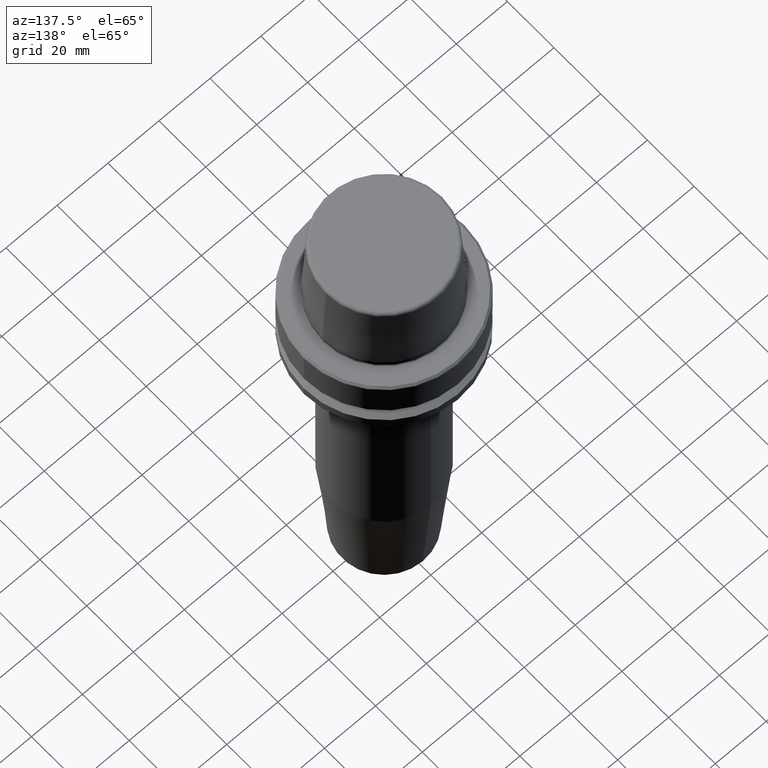
[diagram: clean part render]
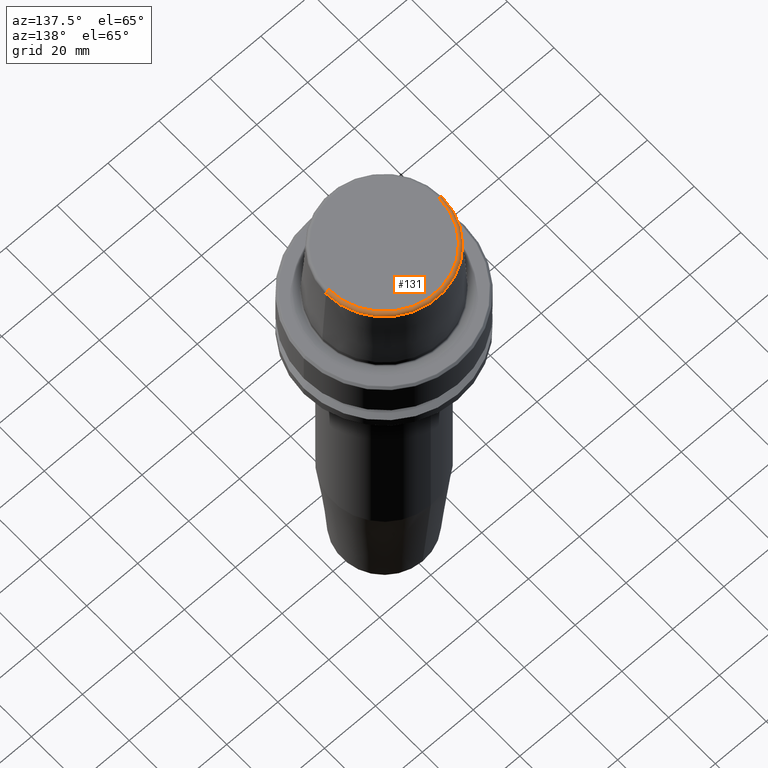
[diagram: same view with one face highlighted and labeled with its STEP entity id]
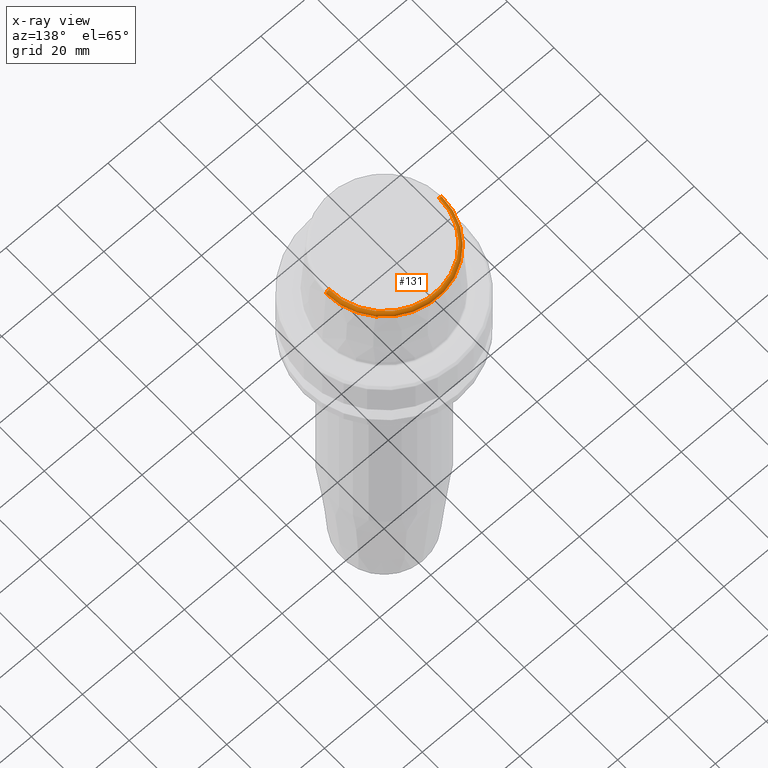
[diagram: x-ray of the same camera — body ghosted, the highlighted face saturated]
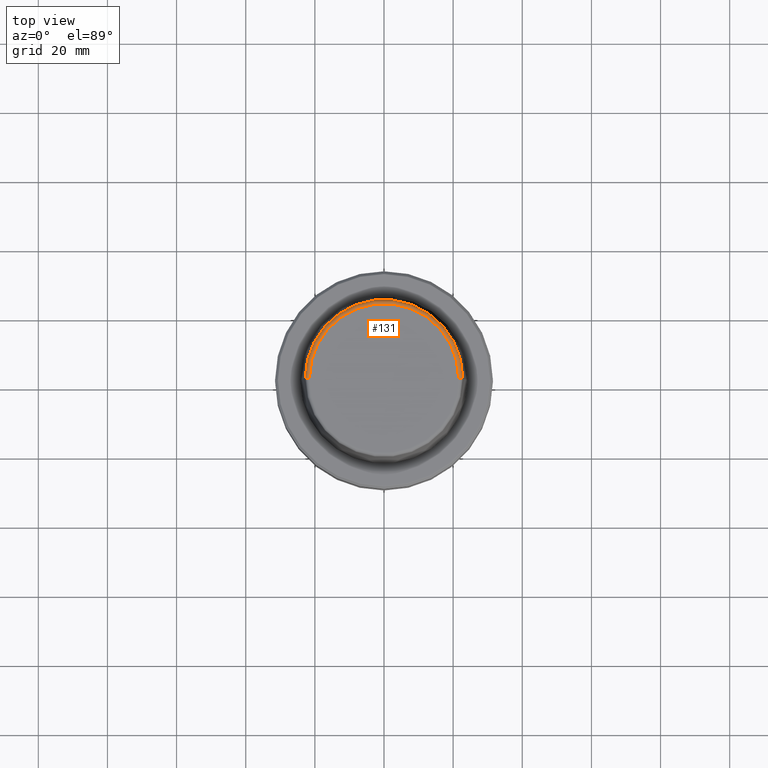
[diagram: same view with one face highlighted and labeled with its STEP entity id]
A machine part, auxiliary view. The second image highlights one B-rep face of the part: STEP entity #131.
The next image is the same camera in x-ray: the body ghosted, the highlighted face saturated — about 0% of this face is hidden behind the body in this view.
A second angle (top view) of the same face is appended — the face is thin or edge-on in the first view.
In plain terms, the highlighted toroidal blend (fillet) surface has major radius 21.5811 mm and minor (blend) radius 1.2 mm.
Its self-contained STEP definition (entity closure, byte-faithful):
#25 = CIRCLE ( 'NONE', #734, 1.200000000000003100 ) ;
#33 = DIRECTION ( 'NONE',  ( -0.0000000000000000000, -0.0000000000000000000, 1.000000000000000000 ) ) ;
#54 = CARTESIAN_POINT ( 'NONE',  ( -21.58108272732117100, 2.716307157494421400E-015, 31.89999999999999900 ) ) ;
#67 = CIRCLE ( 'NONE', #1144, 21.58108272732117100 ) ;
#114 = EDGE_CURVE ( 'NONE', #1018, #348, #257, .T. ) ;
#119 = CIRCLE ( 'NONE', #219, 1.200000000000003100 ) ;
#131 = ADVANCED_FACE ( 'NONE', ( #402 ), #1231, .T. ) ;
#201 = VERTEX_POINT ( 'NONE', #1183 ) ;
#219 = AXIS2_PLACEMENT_3D ( 'NONE', #896, #881, #978 ) ;
#234 = EDGE_CURVE ( 'NONE', #348, #1007, #119, .T. ) ;
#251 = CARTESIAN_POINT ( 'NONE',  ( 0.0000000000000000000, 0.0000000000000000000, 30.76004333261571900 ) ) ;
#257 = CIRCLE ( 'NONE', #654, 22.77957961851797100 ) ;
#286 = ORIENTED_EDGE ( 'NONE', *, *, #1170, .F. ) ;
#348 = VERTEX_POINT ( 'NONE', #666 ) ;
#402 = FACE_OUTER_BOUND ( 'NONE', #595, .T. ) ;
#467 = DIRECTION ( 'NONE',  ( -0.0000000000000000000, -0.0000000000000000000, 1.000000000000000000 ) ) ;
#511 = DIRECTION ( 'NONE',  ( 0.0000000000000000000, -1.000000000000000000, 0.0000000000000000000 ) ) ;
#573 = DIRECTION ( 'NONE',  ( -0.0000000000000000000, -0.0000000000000000000, 1.000000000000000000 ) ) ;
#595 = EDGE_LOOP ( 'NONE', ( #688, #660, #286, #1094 ) ) ;
#621 = DIRECTION ( 'NONE',  ( 1.000000000000000000, 0.0000000000000000000, 0.0000000000000000000 ) ) ;
#654 = AXIS2_PLACEMENT_3D ( 'NONE', #251, #33, #782 ) ;
#660 = ORIENTED_EDGE ( 'NONE', *, *, #234, .T. ) ;
#666 = CARTESIAN_POINT ( 'NONE',  ( -22.77957961851797100, 0.0000000000000000000, 30.76004333261571900 ) ) ;
#688 = ORIENTED_EDGE ( 'NONE', *, *, #114, .T. ) ;
#734 = AXIS2_PLACEMENT_3D ( 'NONE', #1104, #511, #1192 ) ;
#782 = DIRECTION ( 'NONE',  ( 1.000000000000000000, 0.0000000000000000000, 0.0000000000000000000 ) ) ;
#839 = EDGE_CURVE ( 'NONE', #1018, #201, #25, .T. ) ;
#841 = AXIS2_PLACEMENT_3D ( 'NONE', #850, #573, #621 ) ;
#850 = CARTESIAN_POINT ( 'NONE',  ( 0.0000000000000000000, 0.0000000000000000000, 30.69999999999999200 ) ) ;
#881 = DIRECTION ( 'NONE',  ( 1.224646799147353200E-016, 1.000000000000000000, 0.0000000000000000000 ) ) ;
#896 = CARTESIAN_POINT ( 'NONE',  ( -21.58108272732117100, 2.642920388414810300E-015, 30.69999999999999200 ) ) ;
#978 = DIRECTION ( 'NONE',  ( -1.000000000000000000, 1.224646799147353200E-016, 0.0000000000000000000 ) ) ;
#1007 = VERTEX_POINT ( 'NONE', #54 ) ;
#1018 = VERTEX_POINT ( 'NONE', #1130 ) ;
#1057 = CARTESIAN_POINT ( 'NONE',  ( 0.0000000000000000000, 0.0000000000000000000, 31.89999999999999900 ) ) ;
#1094 = ORIENTED_EDGE ( 'NONE', *, *, #839, .F. ) ;
#1104 = CARTESIAN_POINT ( 'NONE',  ( 21.58108272732117100, 0.0000000000000000000, 30.69999999999999200 ) ) ;
#1130 = CARTESIAN_POINT ( 'NONE',  ( 22.77957961851797100, 2.876386432489616700E-015, 30.76004333261571900 ) ) ;
#1144 = AXIS2_PLACEMENT_3D ( 'NONE', #1057, #467, #1153 ) ;
#1153 = DIRECTION ( 'NONE',  ( 1.000000000000000000, 0.0000000000000000000, 0.0000000000000000000 ) ) ;
#1170 = EDGE_CURVE ( 'NONE', #201, #1007, #67, .T. ) ;
#1183 = CARTESIAN_POINT ( 'NONE',  ( 21.58108272732117100, 0.0000000000000000000, 31.89999999999999900 ) ) ;
#1192 = DIRECTION ( 'NONE',  ( 0.0000000000000000000, 0.0000000000000000000, -1.000000000000000000 ) ) ;
#1231 = TOROIDAL_SURFACE ( 'NONE', #841, 21.58108272732117100, 1.200000000000003100 ) ;